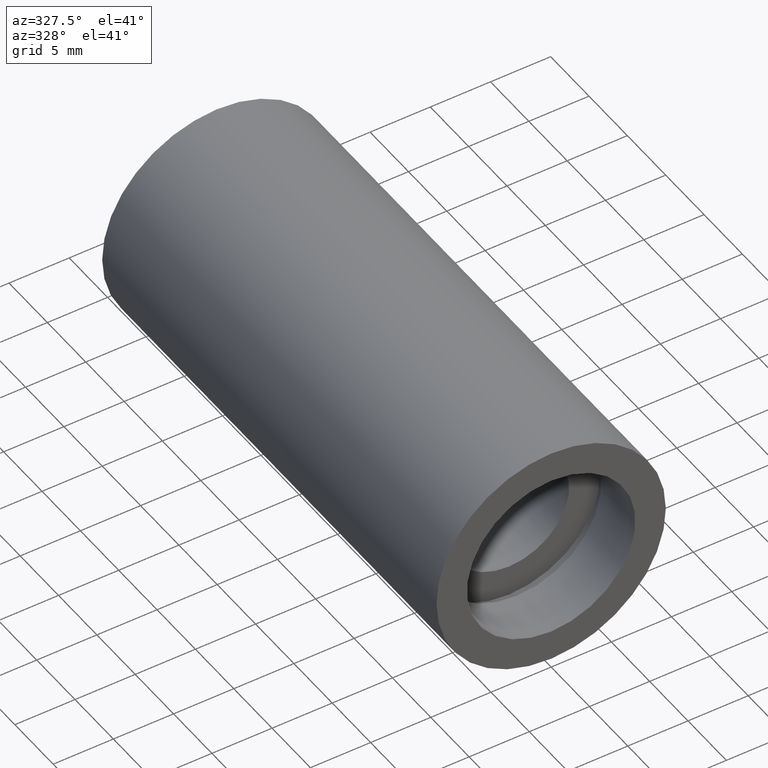
[diagram: clean part render]
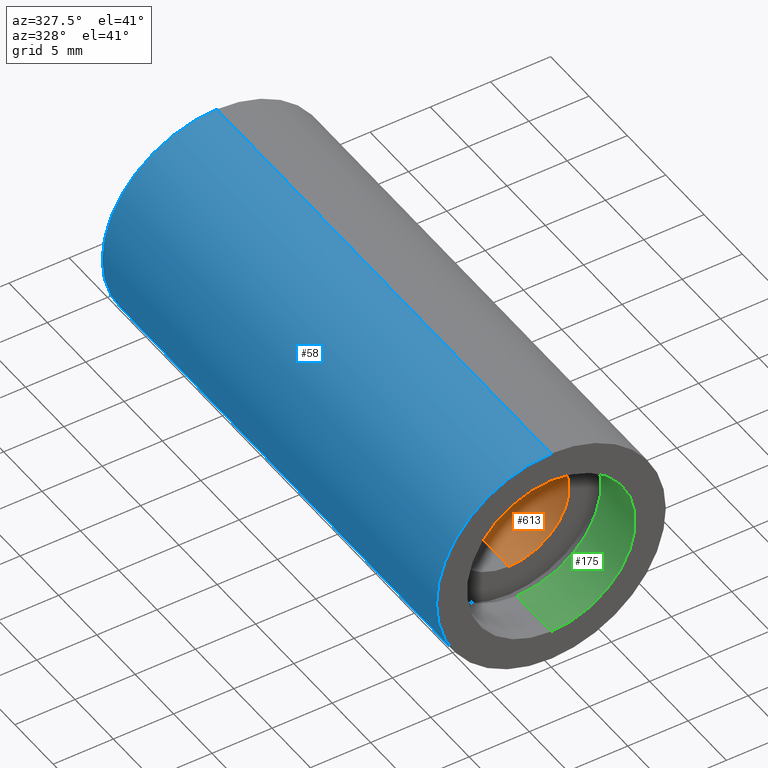
[diagram: same view with three faces highlighted in distinct colors, each labeled with its STEP entity id]
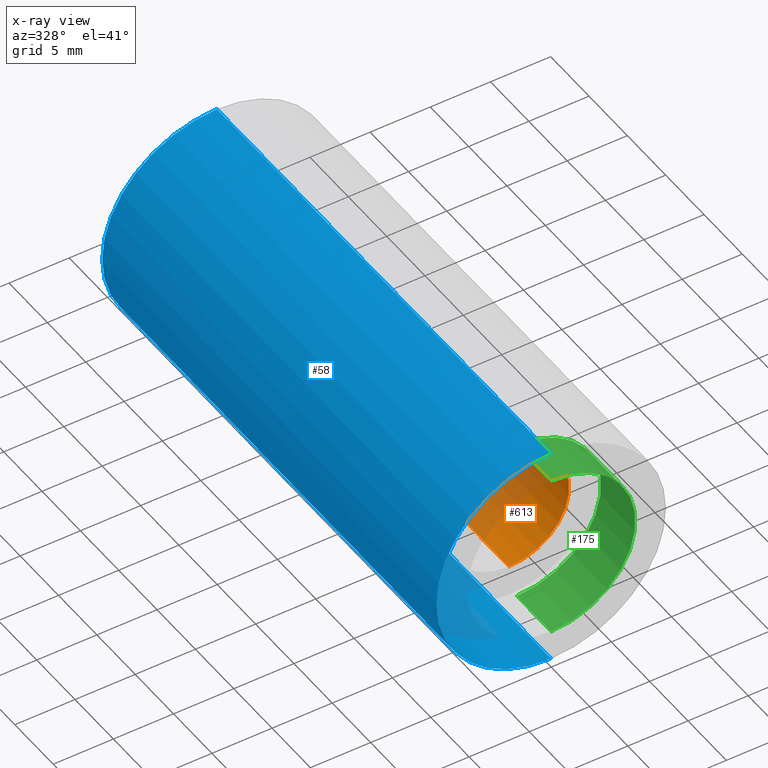
[diagram: x-ray of the same camera — body ghosted, the three highlighted faces saturated]
A machine part, auxiliary view with three faces highlighted in distinct colors.
The next image is the same camera in x-ray (body ghosted, the three faces saturated) — at least one of them is partly hidden behind the body in this view.
Their STEP definitions:

[orange] entity #613 — the highlighted cylindrical surface (partial cylindrical patch) has radius 5 mm, axis along (-0, 1, -0).
#4 = DIRECTION ( 'NONE',  ( -0.0000000000000000000, 1.000000000000000000, -0.0000000000000000000 ) ) ;
#6 = EDGE_CURVE ( 'NONE', #195, #543, #56, .T. ) ;
#7 = CARTESIAN_POINT ( 'NONE',  ( 0.0000000000000000000, 5.499999999999976900, 0.0000000000000000000 ) ) ;
#50 = EDGE_LOOP ( 'NONE', ( #113, #53, #296, #216 ) ) ;
#53 = ORIENTED_EDGE ( 'NONE', *, *, #182, .F. ) ;
#56 = CIRCLE ( 'NONE', #332, 5.000000000000019500 ) ;
#84 = DIRECTION ( 'NONE',  ( -0.0000000000000000000, 1.000000000000000000, -0.0000000000000000000 ) ) ;
#86 = AXIS2_PLACEMENT_3D ( 'NONE', #7, #4, #455 ) ;
#99 = VERTEX_POINT ( 'NONE', #447 ) ;
#113 = ORIENTED_EDGE ( 'NONE', *, *, #568, .F. ) ;
#132 = DIRECTION ( 'NONE',  ( -0.0000000000000000000, 1.000000000000000000, -0.0000000000000000000 ) ) ;
#136 = CARTESIAN_POINT ( 'NONE',  ( 0.0000000000000000000, 161.3761669434274500, 5.000000000000019500 ) ) ;
#148 = CARTESIAN_POINT ( 'NONE',  ( 0.0000000000000000000, 38.09999999999999400, 5.000000000000019500 ) ) ;
#166 = VECTOR ( 'NONE', #84, 1000.000000000000000 ) ;
#182 = EDGE_CURVE ( 'NONE', #99, #219, #240, .T. ) ;
#195 = VERTEX_POINT ( 'NONE', #148 ) ;
#208 = DIRECTION ( 'NONE',  ( 0.0000000000000000000, 0.0000000000000000000, 1.000000000000000000 ) ) ;
#216 = ORIENTED_EDGE ( 'NONE', *, *, #6, .T. ) ;
#219 = VERTEX_POINT ( 'NONE', #302 ) ;
#240 = CIRCLE ( 'NONE', #86, 5.000000000000019500 ) ;
#243 = VECTOR ( 'NONE', #132, 1000.000000000000000 ) ;
#247 = DIRECTION ( 'NONE',  ( 0.0000000000000000000, 0.0000000000000000000, 1.000000000000000000 ) ) ;
#287 = CARTESIAN_POINT ( 'NONE',  ( 6.123233995736789000E-016, 161.3761669434274500, -5.000000000000019500 ) ) ;
#290 = FACE_OUTER_BOUND ( 'NONE', #50, .T. ) ;
#296 = ORIENTED_EDGE ( 'NONE', *, *, #571, .T. ) ;
#302 = CARTESIAN_POINT ( 'NONE',  ( 6.123233995736789000E-016, 5.499999999999976900, -5.000000000000019500 ) ) ;
#304 = LINE ( 'NONE', #287, #243 ) ;
#316 = AXIS2_PLACEMENT_3D ( 'NONE', #469, #604, #208 ) ;
#332 = AXIS2_PLACEMENT_3D ( 'NONE', #535, #530, #247 ) ;
#390 = LINE ( 'NONE', #136, #166 ) ;
#447 = CARTESIAN_POINT ( 'NONE',  ( 0.0000000000000000000, 5.499999999999976900, 5.000000000000019500 ) ) ;
#455 = DIRECTION ( 'NONE',  ( 0.0000000000000000000, 0.0000000000000000000, 1.000000000000000000 ) ) ;
#469 = CARTESIAN_POINT ( 'NONE',  ( 0.0000000000000000000, 161.3761669434274500, 0.0000000000000000000 ) ) ;
#500 = CYLINDRICAL_SURFACE ( 'NONE', #316, 5.000000000000019500 ) ;
#530 = DIRECTION ( 'NONE',  ( -0.0000000000000000000, 1.000000000000000000, -0.0000000000000000000 ) ) ;
#535 = CARTESIAN_POINT ( 'NONE',  ( 0.0000000000000000000, 38.09999999999999400, 0.0000000000000000000 ) ) ;
#543 = VERTEX_POINT ( 'NONE', #618 ) ;
#568 = EDGE_CURVE ( 'NONE', #219, #543, #304, .T. ) ;
#571 = EDGE_CURVE ( 'NONE', #99, #195, #390, .T. ) ;
#604 = DIRECTION ( 'NONE',  ( -0.0000000000000000000, 1.000000000000000000, -0.0000000000000000000 ) ) ;
#613 = ADVANCED_FACE ( 'NONE', ( #290 ), #500, .F. ) ;
#618 = CARTESIAN_POINT ( 'NONE',  ( 6.123233995736789000E-016, 38.09999999999999400, -5.000000000000019500 ) ) ;

[blue] entity #58 — the highlighted cylindrical surface (partial cylindrical patch) has radius 9.525 mm, axis along (-0, 1, -0).
#34 = CARTESIAN_POINT ( 'NONE',  ( 0.0000000000000000000, -2.775557561562891400E-014, 9.525000000000019900 ) ) ;
#35 = AXIS2_PLACEMENT_3D ( 'NONE', #386, #241, #388 ) ;
#39 = VERTEX_POINT ( 'NONE', #192 ) ;
#46 = DIRECTION ( 'NONE',  ( -0.0000000000000000000, 1.000000000000000000, -0.0000000000000000000 ) ) ;
#48 = CARTESIAN_POINT ( 'NONE',  ( 0.0000000000000000000, 43.59999999999998700, 0.0000000000000000000 ) ) ;
#58 = ADVANCED_FACE ( 'NONE', ( #549 ), #404, .T. ) ;
#81 = EDGE_CURVE ( 'NONE', #426, #531, #489, .T. ) ;
#94 = DIRECTION ( 'NONE',  ( -0.0000000000000000000, 1.000000000000000000, -0.0000000000000000000 ) ) ;
#95 = EDGE_CURVE ( 'NONE', #531, #39, #257, .T. ) ;
#102 = ORIENTED_EDGE ( 'NONE', *, *, #179, .T. ) ;
#115 = VECTOR ( 'NONE', #94, 1000.000000000000000 ) ;
#117 = CIRCLE ( 'NONE', #35, 9.525000000000019900 ) ;
#154 = ORIENTED_EDGE ( 'NONE', *, *, #81, .F. ) ;
#172 = ORIENTED_EDGE ( 'NONE', *, *, #528, .T. ) ;
#179 = EDGE_CURVE ( 'NONE', #561, #39, #376, .T. ) ;
#184 = EDGE_LOOP ( 'NONE', ( #154, #172, #102, #547 ) ) ;
#190 = CARTESIAN_POINT ( 'NONE',  ( 1.166476076187856400E-015, 161.3761669434274500, -9.525000000000019900 ) ) ;
#192 = CARTESIAN_POINT ( 'NONE',  ( 0.0000000000000000000, 43.59999999999998700, 9.525000000000019900 ) ) ;
#194 = AXIS2_PLACEMENT_3D ( 'NONE', #248, #395, #254 ) ;
#199 = CARTESIAN_POINT ( 'NONE',  ( 0.0000000000000000000, 161.3761669434274500, 9.525000000000019900 ) ) ;
#241 = DIRECTION ( 'NONE',  ( -0.0000000000000000000, 1.000000000000000000, -0.0000000000000000000 ) ) ;
#248 = CARTESIAN_POINT ( 'NONE',  ( 0.0000000000000000000, 161.3761669434274500, 0.0000000000000000000 ) ) ;
#254 = DIRECTION ( 'NONE',  ( 0.0000000000000000000, 0.0000000000000000000, 1.000000000000000000 ) ) ;
#257 = CIRCLE ( 'NONE', #399, 9.525000000000019900 ) ;
#278 = CARTESIAN_POINT ( 'NONE',  ( 1.166476076187856400E-015, 43.59999999999998700, -9.525000000000019900 ) ) ;
#299 = DIRECTION ( 'NONE',  ( -0.0000000000000000000, 1.000000000000000000, -0.0000000000000000000 ) ) ;
#315 = VECTOR ( 'NONE', #299, 1000.000000000000000 ) ;
#352 = DIRECTION ( 'NONE',  ( 0.0000000000000000000, 0.0000000000000000000, 1.000000000000000000 ) ) ;
#376 = LINE ( 'NONE', #199, #115 ) ;
#386 = CARTESIAN_POINT ( 'NONE',  ( 0.0000000000000000000, -2.775557561562891400E-014, 0.0000000000000000000 ) ) ;
#388 = DIRECTION ( 'NONE',  ( 0.0000000000000000000, 0.0000000000000000000, 1.000000000000000000 ) ) ;
#395 = DIRECTION ( 'NONE',  ( -0.0000000000000000000, 1.000000000000000000, -0.0000000000000000000 ) ) ;
#399 = AXIS2_PLACEMENT_3D ( 'NONE', #48, #46, #352 ) ;
#404 = CYLINDRICAL_SURFACE ( 'NONE', #194, 9.525000000000019900 ) ;
#426 = VERTEX_POINT ( 'NONE', #470 ) ;
#470 = CARTESIAN_POINT ( 'NONE',  ( 1.166476076187856400E-015, -2.775557561562891400E-014, -9.525000000000019900 ) ) ;
#489 = LINE ( 'NONE', #190, #315 ) ;
#528 = EDGE_CURVE ( 'NONE', #426, #561, #117, .T. ) ;
#531 = VERTEX_POINT ( 'NONE', #278 ) ;
#547 = ORIENTED_EDGE ( 'NONE', *, *, #95, .F. ) ;
#549 = FACE_OUTER_BOUND ( 'NONE', #184, .T. ) ;
#561 = VERTEX_POINT ( 'NONE', #34 ) ;

[green] entity #175 — the highlighted cylindrical surface (partial cylindrical patch) has radius 7 mm, axis along (-0, 1, -0).
#8 = CARTESIAN_POINT ( 'NONE',  ( 0.0000000000000000000, 161.3761669434274500, 0.0000000000000000000 ) ) ;
#16 = DIRECTION ( 'NONE',  ( -0.0000000000000000000, 1.000000000000000000, -0.0000000000000000000 ) ) ;
#59 = CIRCLE ( 'NONE', #578, 7.000000000000020400 ) ;
#75 = CARTESIAN_POINT ( 'NONE',  ( 0.0000000000000000000, -2.775557561562891400E-014, 7.000000000000020400 ) ) ;
#101 = DIRECTION ( 'NONE',  ( -0.0000000000000000000, 1.000000000000000000, -0.0000000000000000000 ) ) ;
#122 = DIRECTION ( 'NONE',  ( -0.0000000000000000000, 1.000000000000000000, -0.0000000000000000000 ) ) ;
#123 = DIRECTION ( 'NONE',  ( 0.0000000000000000000, 0.0000000000000000000, 1.000000000000000000 ) ) ;
#141 = CIRCLE ( 'NONE', #558, 7.000000000000020400 ) ;
#175 = ADVANCED_FACE ( 'NONE', ( #360 ), #220, .F. ) ;
#188 = VERTEX_POINT ( 'NONE', #459 ) ;
#210 = CARTESIAN_POINT ( 'NONE',  ( 8.572527594031496900E-016, 4.499999999999976000, -7.000000000000020400 ) ) ;
#213 = ORIENTED_EDGE ( 'NONE', *, *, #501, .T. ) ;
#217 = CARTESIAN_POINT ( 'NONE',  ( 8.572527594031496900E-016, 161.3761669434274500, -7.000000000000020400 ) ) ;
#220 = CYLINDRICAL_SURFACE ( 'NONE', #490, 7.000000000000020400 ) ;
#221 = CARTESIAN_POINT ( 'NONE',  ( 8.572527594031496900E-016, -2.775557561562891400E-014, -7.000000000000020400 ) ) ;
#225 = DIRECTION ( 'NONE',  ( -0.0000000000000000000, 1.000000000000000000, -0.0000000000000000000 ) ) ;
#263 = EDGE_CURVE ( 'NONE', #451, #293, #462, .T. ) ;
#293 = VERTEX_POINT ( 'NONE', #210 ) ;
#360 = FACE_OUTER_BOUND ( 'NONE', #454, .T. ) ;
#394 = VECTOR ( 'NONE', #225, 1000.000000000000000 ) ;
#411 = EDGE_CURVE ( 'NONE', #188, #293, #141, .T. ) ;
#420 = DIRECTION ( 'NONE',  ( 0.0000000000000000000, 0.0000000000000000000, 1.000000000000000000 ) ) ;
#429 = EDGE_CURVE ( 'NONE', #440, #451, #59, .T. ) ;
#431 = VECTOR ( 'NONE', #555, 1000.000000000000000 ) ;
#440 = VERTEX_POINT ( 'NONE', #75 ) ;
#441 = ORIENTED_EDGE ( 'NONE', *, *, #429, .F. ) ;
#451 = VERTEX_POINT ( 'NONE', #221 ) ;
#454 = EDGE_LOOP ( 'NONE', ( #522, #441, #213, #473 ) ) ;
#459 = CARTESIAN_POINT ( 'NONE',  ( 0.0000000000000000000, 4.499999999999976000, 7.000000000000020400 ) ) ;
#462 = LINE ( 'NONE', #217, #431 ) ;
#473 = ORIENTED_EDGE ( 'NONE', *, *, #411, .T. ) ;
#477 = LINE ( 'NONE', #517, #394 ) ;
#490 = AXIS2_PLACEMENT_3D ( 'NONE', #8, #101, #496 ) ;
#496 = DIRECTION ( 'NONE',  ( 0.0000000000000000000, 0.0000000000000000000, 1.000000000000000000 ) ) ;
#501 = EDGE_CURVE ( 'NONE', #440, #188, #477, .T. ) ;
#517 = CARTESIAN_POINT ( 'NONE',  ( 0.0000000000000000000, 161.3761669434274500, 7.000000000000020400 ) ) ;
#522 = ORIENTED_EDGE ( 'NONE', *, *, #263, .F. ) ;
#555 = DIRECTION ( 'NONE',  ( -0.0000000000000000000, 1.000000000000000000, -0.0000000000000000000 ) ) ;
#558 = AXIS2_PLACEMENT_3D ( 'NONE', #596, #16, #420 ) ;
#567 = CARTESIAN_POINT ( 'NONE',  ( 0.0000000000000000000, -2.775557561562891400E-014, 0.0000000000000000000 ) ) ;
#578 = AXIS2_PLACEMENT_3D ( 'NONE', #567, #122, #123 ) ;
#596 = CARTESIAN_POINT ( 'NONE',  ( 0.0000000000000000000, 4.499999999999976000, 0.0000000000000000000 ) ) ;